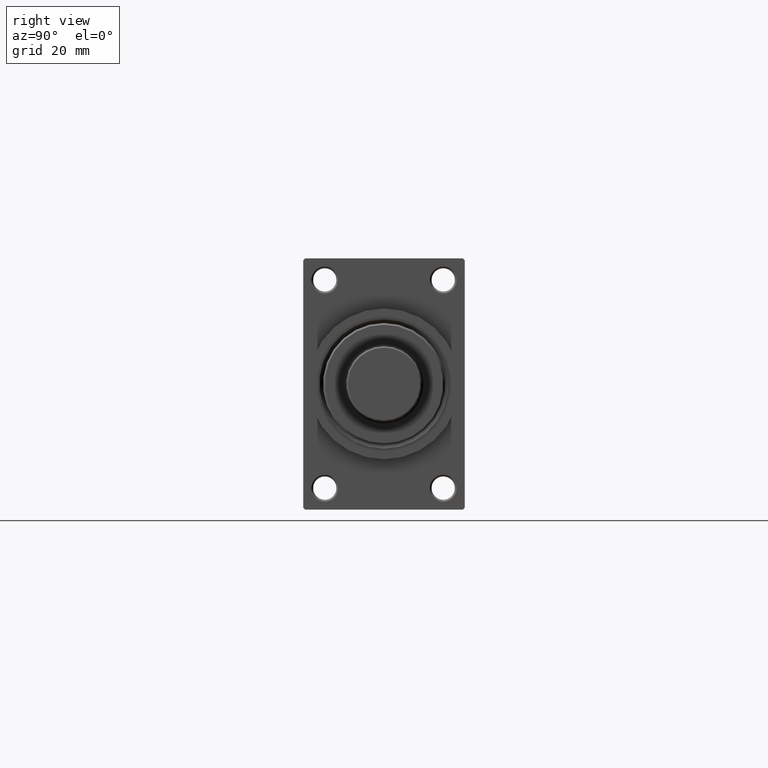
[diagram: clean part render]
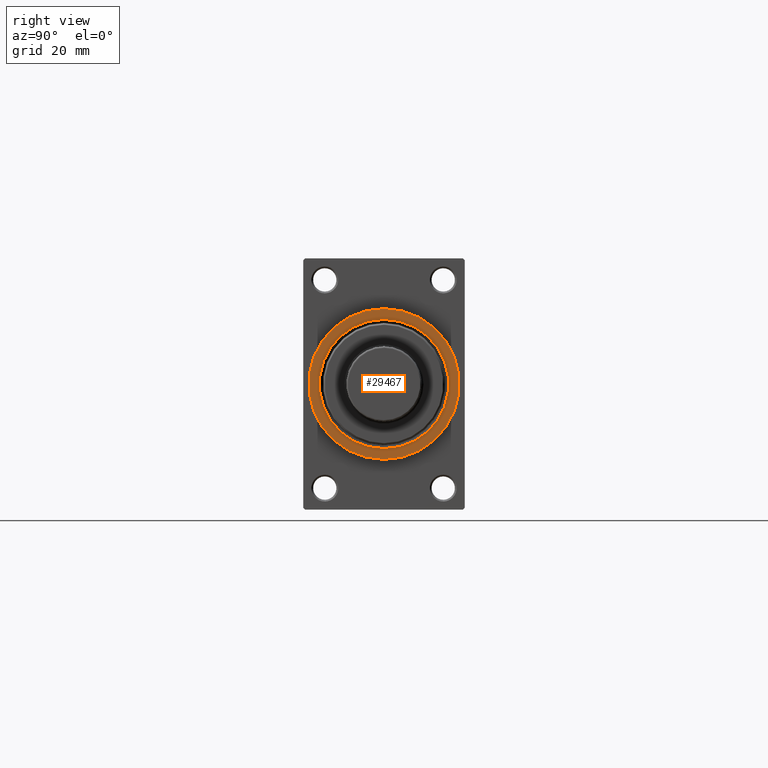
[diagram: same view with one face highlighted and labeled with its STEP entity id]
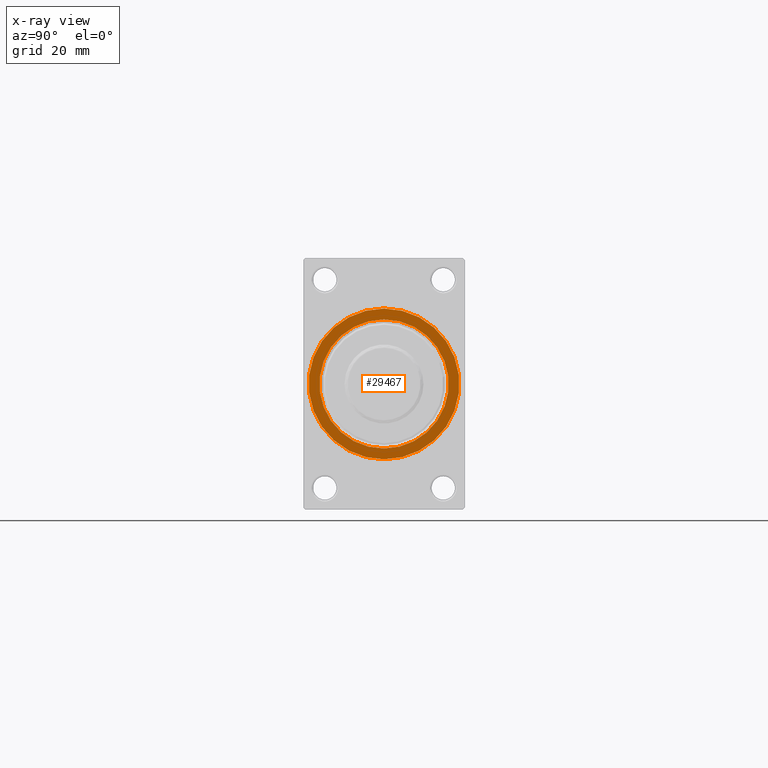
[diagram: x-ray of the same camera — body ghosted, the highlighted face saturated]
A machine part, right view. The second image highlights one B-rep face of the part: STEP entity #29467.
The next image is the same camera in x-ray: the body ghosted, the highlighted face saturated — about 0% of this face is hidden behind the body in this view.
In plain terms, the highlighted planar face has unit normal (1, 0, 0).
Its self-contained STEP definition (entity closure, byte-faithful):
#54 = FACE_BOUND ( 'NONE', #5348, .T. ) ;
#341 = CARTESIAN_POINT ( 'NONE',  ( 123.0000000000000142, 2.571758278209441661E-15, -21.00000000000000000 ) ) ;
#2700 = AXIS2_PLACEMENT_3D ( 'NONE', #46962, #40209, #36130 ) ;
#4037 = EDGE_CURVE ( 'NONE', #45755, #29325, #5758, .T. ) ;
#4123 = DIRECTION ( 'NONE',  ( 0.000000000000000000, 0.000000000000000000, -1.000000000000000000 ) ) ;
#5140 = AXIS2_PLACEMENT_3D ( 'NONE', #23009, #26619, #9051 ) ;
#5348 = EDGE_LOOP ( 'NONE', ( #22040, #30037 ) ) ;
#5758 = CIRCLE ( 'NONE', #2700, 18.00000000000002842 ) ;
#8469 = EDGE_CURVE ( 'NONE', #17275, #30924, #35072, .T. ) ;
#9051 = DIRECTION ( 'NONE',  ( 0.000000000000000000, 0.000000000000000000, -1.000000000000000000 ) ) ;
#10544 = DIRECTION ( 'NONE',  ( 0.000000000000000000, 0.000000000000000000, -1.000000000000000000 ) ) ;
#15419 = EDGE_CURVE ( 'NONE', #29325, #45755, #39772, .T. ) ;
#16838 = AXIS2_PLACEMENT_3D ( 'NONE', #42785, #31972, #10544 ) ;
#17275 = VERTEX_POINT ( 'NONE', #341 ) ;
#17857 = PLANE ( 'NONE',  #30925 ) ;
#18572 = DIRECTION ( 'NONE',  ( 0.000000000000000000, 0.000000000000000000, -1.000000000000000000 ) ) ;
#19056 = AXIS2_PLACEMENT_3D ( 'NONE', #37062, #21924, #4123 ) ;
#20427 = CARTESIAN_POINT ( 'NONE',  ( 123.0000000000000142, 2.204364238465238978E-15, 18.00000000000002842 ) ) ;
#21728 = EDGE_CURVE ( 'NONE', #30924, #17275, #22990, .T. ) ;
#21924 = DIRECTION ( 'NONE',  ( -1.000000000000000000, -0.000000000000000000, -0.000000000000000000 ) ) ;
#22040 = ORIENTED_EDGE ( 'NONE', *, *, #15419, .T. ) ;
#22990 = CIRCLE ( 'NONE', #16838, 21.00000000000000000 ) ;
#23009 = CARTESIAN_POINT ( 'NONE',  ( 123.0000000000000142, 0.000000000000000000, 0.000000000000000000 ) ) ;
#25799 = CARTESIAN_POINT ( 'NONE',  ( 123.0000000000000142, 0.000000000000000000, 0.000000000000000000 ) ) ;
#26566 = CARTESIAN_POINT ( 'NONE',  ( 123.0000000000000142, 0.000000000000000000, -18.00000000000002842 ) ) ;
#26619 = DIRECTION ( 'NONE',  ( 1.000000000000000000, 0.000000000000000000, 0.000000000000000000 ) ) ;
#29325 = VERTEX_POINT ( 'NONE', #26566 ) ;
#29399 = FACE_OUTER_BOUND ( 'NONE', #34454, .T. ) ;
#29467 = ADVANCED_FACE ( 'NONE', ( #54, #29399 ), #17857, .T. ) ;
#30037 = ORIENTED_EDGE ( 'NONE', *, *, #4037, .T. ) ;
#30924 = VERTEX_POINT ( 'NONE', #36818 ) ;
#30925 = AXIS2_PLACEMENT_3D ( 'NONE', #25799, #37089, #18572 ) ;
#31972 = DIRECTION ( 'NONE',  ( 1.000000000000000000, 0.000000000000000000, 0.000000000000000000 ) ) ;
#34454 = EDGE_LOOP ( 'NONE', ( #46361, #47019 ) ) ;
#35072 = CIRCLE ( 'NONE', #5140, 21.00000000000000000 ) ;
#36130 = DIRECTION ( 'NONE',  ( 0.000000000000000000, 0.000000000000000000, -1.000000000000000000 ) ) ;
#36818 = CARTESIAN_POINT ( 'NONE',  ( 123.0000000000000142, 0.000000000000000000, 21.00000000000000000 ) ) ;
#37062 = CARTESIAN_POINT ( 'NONE',  ( 123.0000000000000142, 0.000000000000000000, 0.000000000000000000 ) ) ;
#37089 = DIRECTION ( 'NONE',  ( 1.000000000000000000, 0.000000000000000000, 0.000000000000000000 ) ) ;
#39772 = CIRCLE ( 'NONE', #19056, 18.00000000000002842 ) ;
#40209 = DIRECTION ( 'NONE',  ( -1.000000000000000000, -0.000000000000000000, -0.000000000000000000 ) ) ;
#42785 = CARTESIAN_POINT ( 'NONE',  ( 123.0000000000000142, 0.000000000000000000, 0.000000000000000000 ) ) ;
#45755 = VERTEX_POINT ( 'NONE', #20427 ) ;
#46361 = ORIENTED_EDGE ( 'NONE', *, *, #21728, .T. ) ;
#46962 = CARTESIAN_POINT ( 'NONE',  ( 123.0000000000000142, 0.000000000000000000, 0.000000000000000000 ) ) ;
#47019 = ORIENTED_EDGE ( 'NONE', *, *, #8469, .T. ) ;